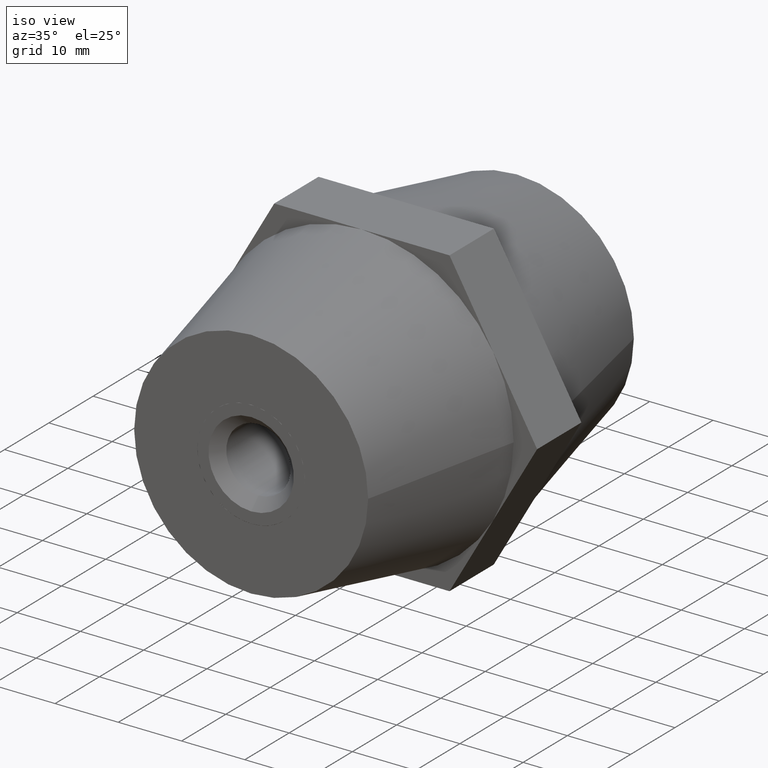
[diagram: clean part render]
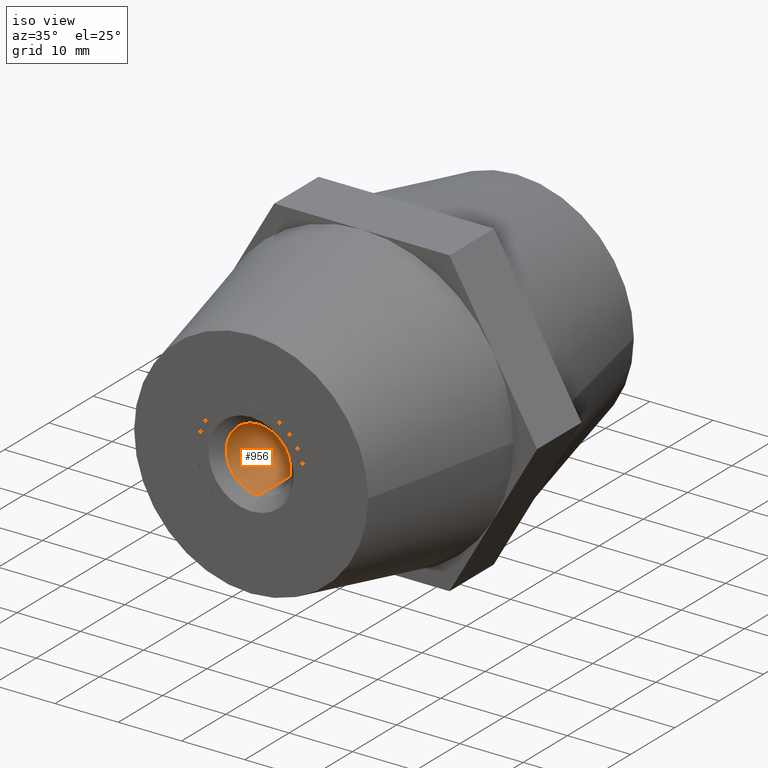
[diagram: same view with one face highlighted and labeled with its STEP entity id]
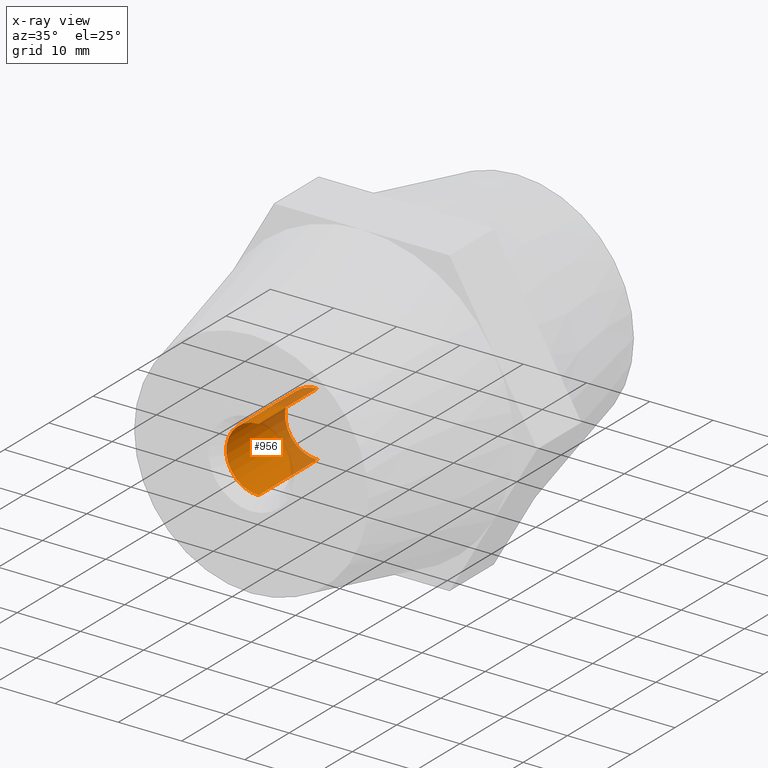
[diagram: x-ray of the same camera — body ghosted, the highlighted face saturated]
A machine part, iso view. The second image highlights one B-rep face of the part: STEP entity #956.
The next image is the same camera in x-ray: the body ghosted, the highlighted face saturated — about 27% of this face is hidden behind the body in this view.
In plain terms, the highlighted cylindrical surface (partial cylindrical patch) has radius 5.1 mm, axis along (0, -1, 0).
Its self-contained STEP definition (entity closure, byte-faithful):
#18 = ORIENTED_EDGE ( 'NONE', *, *, #1298, .T. ) ;
#111 = CYLINDRICAL_SURFACE ( 'NONE', #3378, 5.100000000000000500 ) ;
#255 = FACE_OUTER_BOUND ( 'NONE', #3490, .T. ) ;
#273 = ORIENTED_EDGE ( 'NONE', *, *, #1169, .F. ) ;
#308 = VECTOR ( 'NONE', #1331, 1000.000000000000000 ) ;
#419 = VERTEX_POINT ( 'NONE', #1327 ) ;
#781 = ORIENTED_EDGE ( 'NONE', *, *, #1716, .T. ) ;
#808 = CARTESIAN_POINT ( 'NONE',  ( 6.245698675651501800E-016, 4.060000000000000500, -5.100000000000000500 ) ) ;
#820 = CARTESIAN_POINT ( 'NONE',  ( 0.0000000000000000000, 4.060000000000000500, 5.100000000000000500 ) ) ;
#921 = VERTEX_POINT ( 'NONE', #3577 ) ;
#924 = CARTESIAN_POINT ( 'NONE',  ( 0.0000000000000000000, 17.35000000000000100, 0.0000000000000000000 ) ) ;
#956 = ADVANCED_FACE ( 'NONE', ( #255 ), #111, .F. ) ;
#1150 = AXIS2_PLACEMENT_3D ( 'NONE', #3700, #2461, #1561 ) ;
#1169 = EDGE_CURVE ( 'NONE', #1548, #2435, #2612, .T. ) ;
#1282 = CARTESIAN_POINT ( 'NONE',  ( 6.245698675651501800E-016, 19.00000000000000000, -5.100000000000000500 ) ) ;
#1298 = EDGE_CURVE ( 'NONE', #1548, #419, #3040, .T. ) ;
#1327 = CARTESIAN_POINT ( 'NONE',  ( 0.0000000000000000000, 17.35000000000000100, 5.100000000000000500 ) ) ;
#1331 = DIRECTION ( 'NONE',  ( 0.0000000000000000000, 1.000000000000000000, 0.0000000000000000000 ) ) ;
#1365 = DIRECTION ( 'NONE',  ( 0.0000000000000000000, 1.000000000000000000, 0.0000000000000000000 ) ) ;
#1479 = CARTESIAN_POINT ( 'NONE',  ( 0.0000000000000000000, 19.00000000000000000, 0.0000000000000000000 ) ) ;
#1548 = VERTEX_POINT ( 'NONE', #820 ) ;
#1560 = VECTOR ( 'NONE', #1365, 1000.000000000000000 ) ;
#1561 = DIRECTION ( 'NONE',  ( 0.0000000000000000000, 0.0000000000000000000, 1.000000000000000000 ) ) ;
#1667 = CIRCLE ( 'NONE', #2677, 5.100000000000000500 ) ;
#1716 = EDGE_CURVE ( 'NONE', #419, #921, #1667, .T. ) ;
#1733 = DIRECTION ( 'NONE',  ( 0.0000000000000000000, 0.0000000000000000000, 1.000000000000000000 ) ) ;
#2435 = VERTEX_POINT ( 'NONE', #808 ) ;
#2461 = DIRECTION ( 'NONE',  ( 0.0000000000000000000, 1.000000000000000000, 0.0000000000000000000 ) ) ;
#2612 = CIRCLE ( 'NONE', #1150, 5.100000000000000500 ) ;
#2677 = AXIS2_PLACEMENT_3D ( 'NONE', #924, #3009, #3622 ) ;
#2715 = DIRECTION ( 'NONE',  ( 0.0000000000000000000, 1.000000000000000000, 0.0000000000000000000 ) ) ;
#3009 = DIRECTION ( 'NONE',  ( 0.0000000000000000000, 1.000000000000000000, 0.0000000000000000000 ) ) ;
#3040 = LINE ( 'NONE', #3482, #1560 ) ;
#3156 = LINE ( 'NONE', #1282, #308 ) ;
#3301 = ORIENTED_EDGE ( 'NONE', *, *, #3580, .F. ) ;
#3378 = AXIS2_PLACEMENT_3D ( 'NONE', #1479, #2715, #1733 ) ;
#3482 = CARTESIAN_POINT ( 'NONE',  ( 0.0000000000000000000, 19.00000000000000000, 5.100000000000000500 ) ) ;
#3490 = EDGE_LOOP ( 'NONE', ( #3301, #273, #18, #781 ) ) ;
#3577 = CARTESIAN_POINT ( 'NONE',  ( 6.245698675651501800E-016, 17.35000000000000100, -5.100000000000000500 ) ) ;
#3580 = EDGE_CURVE ( 'NONE', #2435, #921, #3156, .T. ) ;
#3622 = DIRECTION ( 'NONE',  ( 0.0000000000000000000, 0.0000000000000000000, 1.000000000000000000 ) ) ;
#3700 = CARTESIAN_POINT ( 'NONE',  ( 0.0000000000000000000, 4.060000000000000500, 0.0000000000000000000 ) ) ;